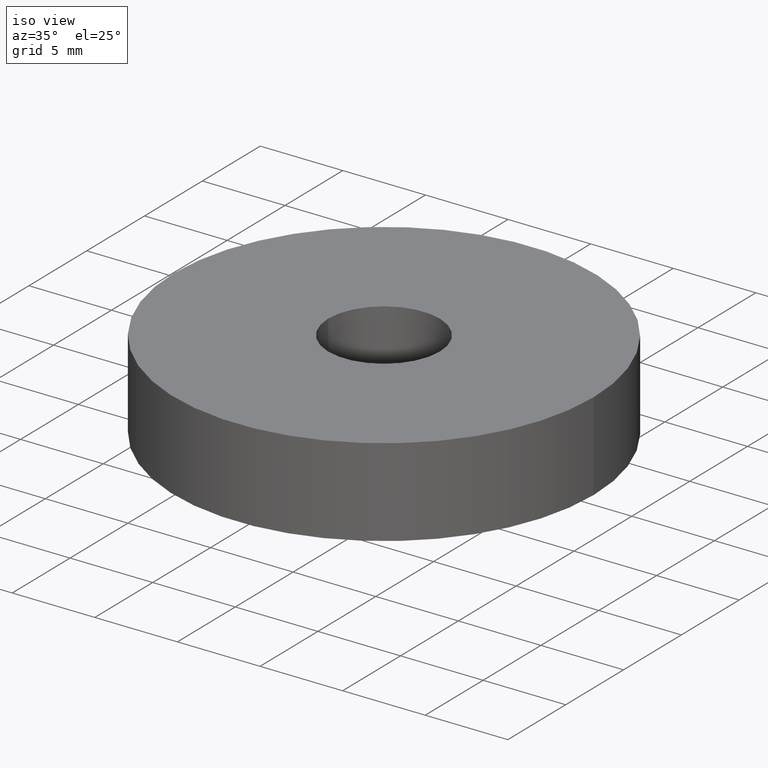
[diagram: clean part render]
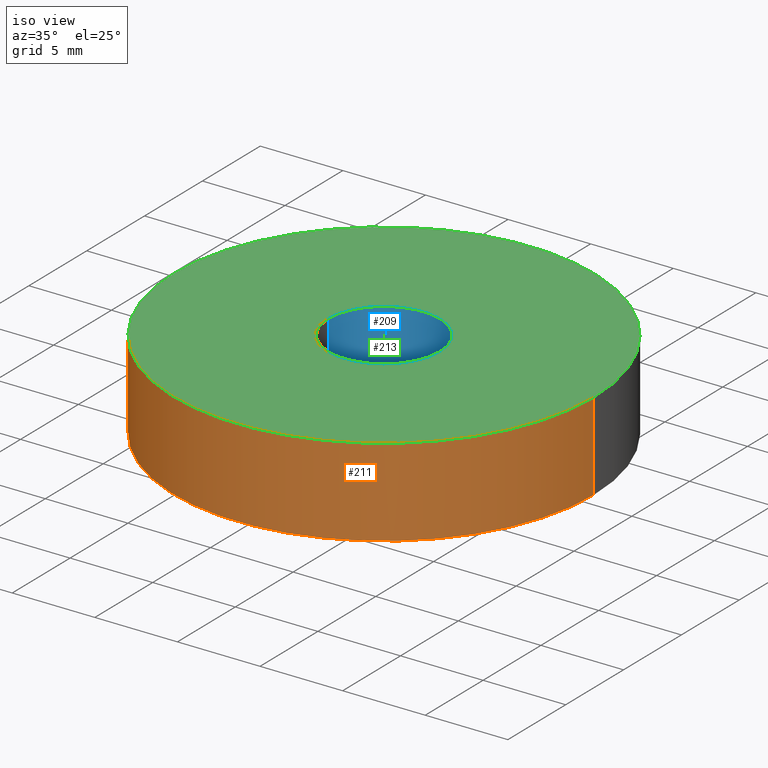
[diagram: same view with three faces highlighted in distinct colors, each labeled with its STEP entity id]
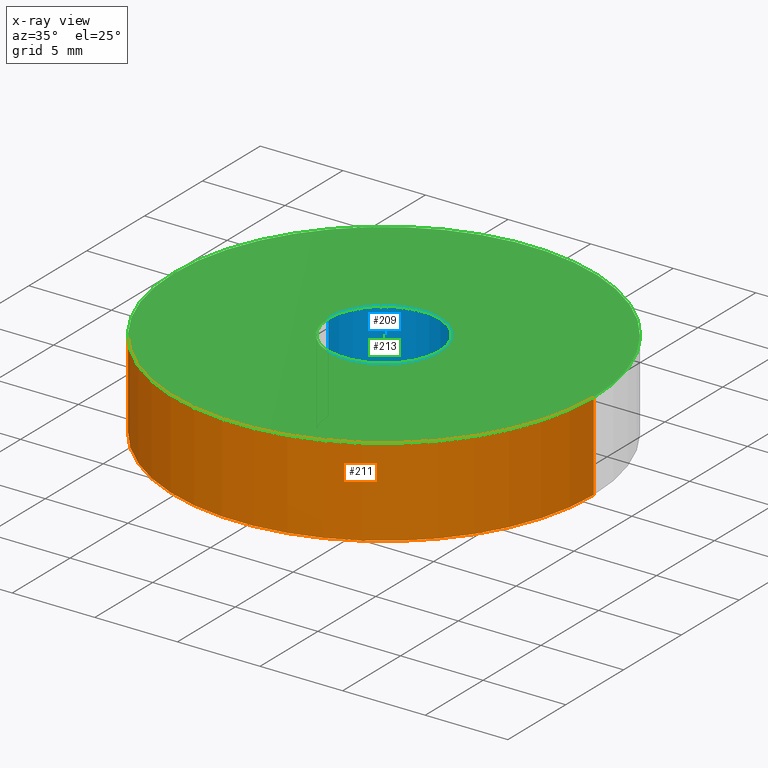
[diagram: x-ray of the same camera — body ghosted, the three highlighted faces saturated]
A machine part, iso view with three faces highlighted in distinct colors.
The next image is the same camera in x-ray (body ghosted, the three faces saturated) — at least one of them is partly hidden behind the body in this view.
Their STEP definitions:

[orange] entity #211 — the highlighted cylindrical surface (partial cylindrical patch) has radius 12.7 mm, axis along (0, 0, 1).
#10 = CIRCLE ( 'NONE', #198, 12.69999999999999900 ) ;
#25 = VECTOR ( 'NONE', #98, 1000.000000000000000 ) ;
#26 = CIRCLE ( 'NONE', #191, 12.69999999999999900 ) ;
#47 = CYLINDRICAL_SURFACE ( 'NONE', #189, 12.69999999999999900 ) ;
#56 = LINE ( 'NONE', #95, #58 ) ;
#58 = VECTOR ( 'NONE', #96, 1000.000000000000000 ) ;
#63 = LINE ( 'NONE', #97, #25 ) ;
#66 = FACE_OUTER_BOUND ( 'NONE', #229, .T. ) ;
#70 = VERTEX_POINT ( 'NONE', #78 ) ;
#75 = VERTEX_POINT ( 'NONE', #83 ) ;
#76 = VERTEX_POINT ( 'NONE', #84 ) ;
#77 = VERTEX_POINT ( 'NONE', #85 ) ;
#78 = CARTESIAN_POINT ( 'NONE',  ( 12.69999999999999900, 0.0000000000000000000, -5.349999999999999600 ) ) ;
#83 = CARTESIAN_POINT ( 'NONE',  ( -12.69999999999999900, 1.555301434917138400E-015, -5.349999999999999600 ) ) ;
#84 = CARTESIAN_POINT ( 'NONE',  ( -12.69999999999999900, 1.555301434917138400E-015, 0.0000000000000000000 ) ) ;
#85 = CARTESIAN_POINT ( 'NONE',  ( 12.69999999999999900, 0.0000000000000000000, 0.0000000000000000000 ) ) ;
#95 = CARTESIAN_POINT ( 'NONE',  ( -12.69999999999999900, 1.555301434917138400E-015, -5.349999999999999600 ) ) ;
#96 = DIRECTION ( 'NONE',  ( 0.0000000000000000000, 0.0000000000000000000, 1.000000000000000000 ) ) ;
#97 = CARTESIAN_POINT ( 'NONE',  ( 12.69999999999999900, 0.0000000000000000000, -5.349999999999999600 ) ) ;
#98 = DIRECTION ( 'NONE',  ( 0.0000000000000000000, 0.0000000000000000000, 1.000000000000000000 ) ) ;
#109 = CARTESIAN_POINT ( 'NONE',  ( 0.0000000000000000000, 0.0000000000000000000, 0.0000000000000000000 ) ) ;
#110 = DIRECTION ( 'NONE',  ( 0.0000000000000000000, 0.0000000000000000000, 1.000000000000000000 ) ) ;
#111 = DIRECTION ( 'NONE',  ( 1.000000000000000000, 0.0000000000000000000, 0.0000000000000000000 ) ) ;
#112 = CARTESIAN_POINT ( 'NONE',  ( 0.0000000000000000000, 0.0000000000000000000, -5.349999999999999600 ) ) ;
#113 = DIRECTION ( 'NONE',  ( 0.0000000000000000000, 0.0000000000000000000, 1.000000000000000000 ) ) ;
#114 = DIRECTION ( 'NONE',  ( 1.000000000000000000, 0.0000000000000000000, 0.0000000000000000000 ) ) ;
#124 = CARTESIAN_POINT ( 'NONE',  ( 0.0000000000000000000, 0.0000000000000000000, -5.349999999999999600 ) ) ;
#125 = DIRECTION ( 'NONE',  ( 0.0000000000000000000, 0.0000000000000000000, 1.000000000000000000 ) ) ;
#126 = DIRECTION ( 'NONE',  ( 1.000000000000000000, 0.0000000000000000000, 0.0000000000000000000 ) ) ;
#168 = EDGE_CURVE ( 'NONE', #75, #76, #56, .T. ) ;
#169 = EDGE_CURVE ( 'NONE', #70, #77, #63, .T. ) ;
#189 = AXIS2_PLACEMENT_3D ( 'NONE', #124, #125, #126 ) ;
#191 = AXIS2_PLACEMENT_3D ( 'NONE', #112, #113, #114 ) ;
#194 = EDGE_CURVE ( 'NONE', #76, #77, #10, .T. ) ;
#197 = EDGE_CURVE ( 'NONE', #75, #70, #26, .T. ) ;
#198 = AXIS2_PLACEMENT_3D ( 'NONE', #109, #110, #111 ) ;
#211 = ADVANCED_FACE ( 'NONE', ( #66 ), #47, .T. ) ;
#218 = ORIENTED_EDGE ( 'NONE', *, *, #168, .F. ) ;
#222 = ORIENTED_EDGE ( 'NONE', *, *, #197, .T. ) ;
#229 = EDGE_LOOP ( 'NONE', ( #218, #222, #234, #238 ) ) ;
#234 = ORIENTED_EDGE ( 'NONE', *, *, #169, .T. ) ;
#238 = ORIENTED_EDGE ( 'NONE', *, *, #194, .F. ) ;

[blue] entity #209 — the highlighted cylindrical surface (partial cylindrical patch) has radius 3.3782 mm, axis along (-0, -0, 1).
#16 = CYLINDRICAL_SURFACE ( 'NONE', #187, 3.378199999999993400 ) ;
#48 = FACE_OUTER_BOUND ( 'NONE', #221, .T. ) ;
#50 = CIRCLE ( 'NONE', #193, 3.378199999999999200 ) ;
#53 = LINE ( 'NONE', #102, #60 ) ;
#60 = VECTOR ( 'NONE', #103, 1000.000000000000000 ) ;
#61 = CIRCLE ( 'NONE', #195, 3.378199999999987700 ) ;
#67 = VECTOR ( 'NONE', #105, 1000.000000000000000 ) ;
#68 = LINE ( 'NONE', #104, #67 ) ;
#71 = VERTEX_POINT ( 'NONE', #79 ) ;
#72 = VERTEX_POINT ( 'NONE', #80 ) ;
#73 = VERTEX_POINT ( 'NONE', #81 ) ;
#74 = VERTEX_POINT ( 'NONE', #82 ) ;
#79 = CARTESIAN_POINT ( 'NONE',  ( -3.378199999999999600, 4.137101816879588000E-016, -5.349999999999999600 ) ) ;
#80 = CARTESIAN_POINT ( 'NONE',  ( 3.378199999999999200, 0.0000000000000000000, -5.349999999999999600 ) ) ;
#81 = CARTESIAN_POINT ( 'NONE',  ( -3.378199999999987700, 4.137101816879577200E-016, 1.141591253229177300E-015 ) ) ;
#82 = CARTESIAN_POINT ( 'NONE',  ( 3.378199999999987700, 0.0000000000000000000, 1.141591253229177300E-015 ) ) ;
#86 = CARTESIAN_POINT ( 'NONE',  ( 0.0000000000000000000, 0.0000000000000000000, -5.349999999999999600 ) ) ;
#87 = DIRECTION ( 'NONE',  ( -0.0000000000000000000, -0.0000000000000000000, 1.000000000000000000 ) ) ;
#88 = DIRECTION ( 'NONE',  ( 1.000000000000000000, 0.0000000000000000000, 0.0000000000000000000 ) ) ;
#102 = CARTESIAN_POINT ( 'NONE',  ( -3.378199999999993400, 4.137101816879580600E-016, 0.0000000000000000000 ) ) ;
#103 = DIRECTION ( 'NONE',  ( -0.0000000000000000000, -0.0000000000000000000, 1.000000000000000000 ) ) ;
#104 = CARTESIAN_POINT ( 'NONE',  ( 3.378199999999993400, 0.0000000000000000000, 0.0000000000000000000 ) ) ;
#105 = DIRECTION ( 'NONE',  ( -0.0000000000000000000, -0.0000000000000000000, 1.000000000000000000 ) ) ;
#106 = CARTESIAN_POINT ( 'NONE',  ( 0.0000000000000000000, 0.0000000000000000000, 1.141591253229177300E-015 ) ) ;
#107 = DIRECTION ( 'NONE',  ( -0.0000000000000000000, -0.0000000000000000000, 1.000000000000000000 ) ) ;
#108 = DIRECTION ( 'NONE',  ( 1.000000000000000000, 0.0000000000000000000, 0.0000000000000000000 ) ) ;
#118 = CARTESIAN_POINT ( 'NONE',  ( 0.0000000000000000000, 0.0000000000000000000, 0.0000000000000000000 ) ) ;
#119 = DIRECTION ( 'NONE',  ( -0.0000000000000000000, -0.0000000000000000000, 1.000000000000000000 ) ) ;
#120 = DIRECTION ( 'NONE',  ( 1.000000000000000000, 0.0000000000000000000, 0.0000000000000000000 ) ) ;
#165 = EDGE_CURVE ( 'NONE', #72, #71, #50, .T. ) ;
#171 = EDGE_CURVE ( 'NONE', #71, #73, #53, .T. ) ;
#187 = AXIS2_PLACEMENT_3D ( 'NONE', #118, #119, #120 ) ;
#190 = EDGE_CURVE ( 'NONE', #72, #74, #68, .T. ) ;
#192 = EDGE_CURVE ( 'NONE', #74, #73, #61, .T. ) ;
#193 = AXIS2_PLACEMENT_3D ( 'NONE', #86, #87, #88 ) ;
#195 = AXIS2_PLACEMENT_3D ( 'NONE', #106, #107, #108 ) ;
#209 = ADVANCED_FACE ( 'NONE', ( #48 ), #16, .F. ) ;
#221 = EDGE_LOOP ( 'NONE', ( #243, #244, #227, #235 ) ) ;
#227 = ORIENTED_EDGE ( 'NONE', *, *, #190, .T. ) ;
#235 = ORIENTED_EDGE ( 'NONE', *, *, #192, .T. ) ;
#243 = ORIENTED_EDGE ( 'NONE', *, *, #171, .F. ) ;
#244 = ORIENTED_EDGE ( 'NONE', *, *, #165, .F. ) ;

[green] entity #213 — the highlighted planar face has unit normal (0, 0, 1).
#1 = CIRCLE ( 'NONE', #199, 3.378199999999987700 ) ;
#5 = ORIENTED_EDGE ( 'NONE', *, *, #166, .F. ) ;
#10 = CIRCLE ( 'NONE', #198, 12.69999999999999900 ) ;
#41 = FACE_OUTER_BOUND ( 'NONE', #224, .T. ) ;
#43 = FACE_BOUND ( 'NONE', #228, .T. ) ;
#51 = CIRCLE ( 'NONE', #201, 12.69999999999999900 ) ;
#61 = CIRCLE ( 'NONE', #195, 3.378199999999987700 ) ;
#69 = ORIENTED_EDGE ( 'NONE', *, *, #170, .T. ) ;
#73 = VERTEX_POINT ( 'NONE', #81 ) ;
#74 = VERTEX_POINT ( 'NONE', #82 ) ;
#76 = VERTEX_POINT ( 'NONE', #84 ) ;
#77 = VERTEX_POINT ( 'NONE', #85 ) ;
#81 = CARTESIAN_POINT ( 'NONE',  ( -3.378199999999987700, 4.137101816879577200E-016, 1.141591253229177300E-015 ) ) ;
#82 = CARTESIAN_POINT ( 'NONE',  ( 3.378199999999987700, 0.0000000000000000000, 1.141591253229177300E-015 ) ) ;
#84 = CARTESIAN_POINT ( 'NONE',  ( -12.69999999999999900, 1.555301434917138400E-015, 0.0000000000000000000 ) ) ;
#85 = CARTESIAN_POINT ( 'NONE',  ( 12.69999999999999900, 0.0000000000000000000, 0.0000000000000000000 ) ) ;
#89 = CARTESIAN_POINT ( 'NONE',  ( 0.0000000000000000000, 0.0000000000000000000, 1.141591253229177300E-015 ) ) ;
#90 = DIRECTION ( 'NONE',  ( -0.0000000000000000000, -0.0000000000000000000, 1.000000000000000000 ) ) ;
#91 = DIRECTION ( 'NONE',  ( 1.000000000000000000, 0.0000000000000000000, 0.0000000000000000000 ) ) ;
#99 = CARTESIAN_POINT ( 'NONE',  ( 0.0000000000000000000, 0.0000000000000000000, 0.0000000000000000000 ) ) ;
#100 = DIRECTION ( 'NONE',  ( 0.0000000000000000000, 0.0000000000000000000, 1.000000000000000000 ) ) ;
#101 = DIRECTION ( 'NONE',  ( 1.000000000000000000, 0.0000000000000000000, 0.0000000000000000000 ) ) ;
#106 = CARTESIAN_POINT ( 'NONE',  ( 0.0000000000000000000, 0.0000000000000000000, 1.141591253229177300E-015 ) ) ;
#107 = DIRECTION ( 'NONE',  ( -0.0000000000000000000, -0.0000000000000000000, 1.000000000000000000 ) ) ;
#108 = DIRECTION ( 'NONE',  ( 1.000000000000000000, 0.0000000000000000000, 0.0000000000000000000 ) ) ;
#109 = CARTESIAN_POINT ( 'NONE',  ( 0.0000000000000000000, 0.0000000000000000000, 0.0000000000000000000 ) ) ;
#110 = DIRECTION ( 'NONE',  ( 0.0000000000000000000, 0.0000000000000000000, 1.000000000000000000 ) ) ;
#111 = DIRECTION ( 'NONE',  ( 1.000000000000000000, 0.0000000000000000000, 0.0000000000000000000 ) ) ;
#130 = PLANE ( 'NONE',  #179 ) ;
#131 = CARTESIAN_POINT ( 'NONE',  ( 0.0000000000000000000, 0.0000000000000000000, 0.0000000000000000000 ) ) ;
#132 = DIRECTION ( 'NONE',  ( 0.0000000000000000000, 0.0000000000000000000, 1.000000000000000000 ) ) ;
#133 = DIRECTION ( 'NONE',  ( 1.000000000000000000, 0.0000000000000000000, -0.0000000000000000000 ) ) ;
#166 = EDGE_CURVE ( 'NONE', #73, #74, #1, .T. ) ;
#170 = EDGE_CURVE ( 'NONE', #77, #76, #51, .T. ) ;
#179 = AXIS2_PLACEMENT_3D ( 'NONE', #131, #132, #133 ) ;
#192 = EDGE_CURVE ( 'NONE', #74, #73, #61, .T. ) ;
#194 = EDGE_CURVE ( 'NONE', #76, #77, #10, .T. ) ;
#195 = AXIS2_PLACEMENT_3D ( 'NONE', #106, #107, #108 ) ;
#198 = AXIS2_PLACEMENT_3D ( 'NONE', #109, #110, #111 ) ;
#199 = AXIS2_PLACEMENT_3D ( 'NONE', #89, #90, #91 ) ;
#201 = AXIS2_PLACEMENT_3D ( 'NONE', #99, #100, #101 ) ;
#213 = ADVANCED_FACE ( 'NONE', ( #43, #41 ), #130, .T. ) ;
#224 = EDGE_LOOP ( 'NONE', ( #69, #247 ) ) ;
#228 = EDGE_LOOP ( 'NONE', ( #241, #5 ) ) ;
#241 = ORIENTED_EDGE ( 'NONE', *, *, #192, .F. ) ;
#247 = ORIENTED_EDGE ( 'NONE', *, *, #194, .T. ) ;